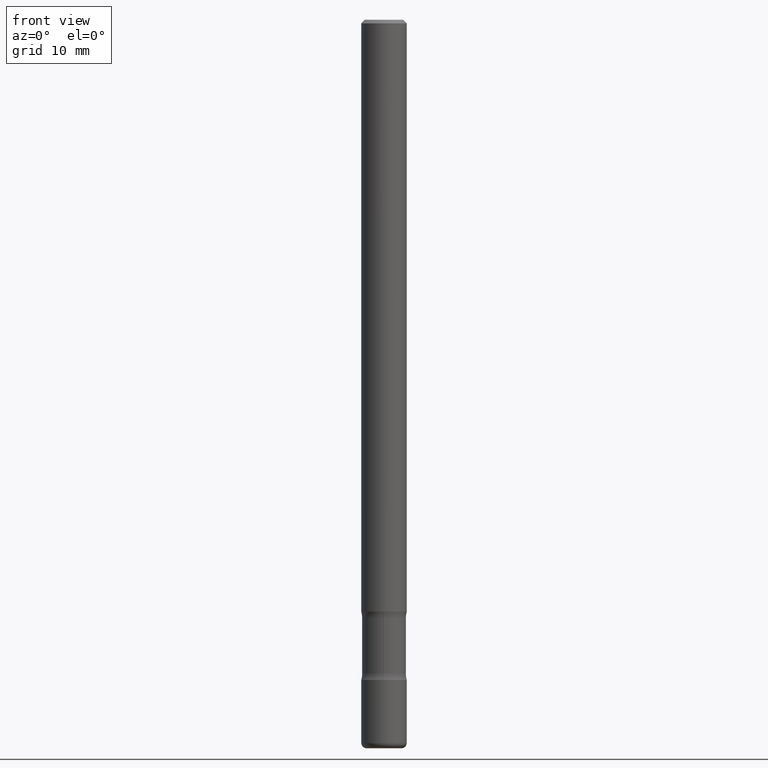
[diagram: clean part render]
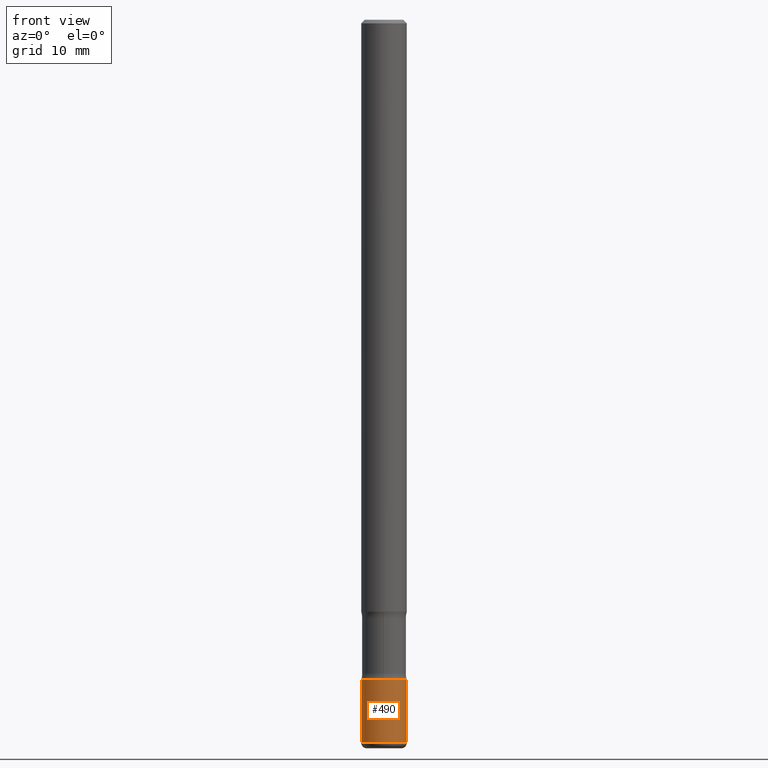
[diagram: same view with one face highlighted and labeled with its STEP entity id]
A machine part, front view. The second image highlights one B-rep face of the part: STEP entity #490.
In plain terms, the highlighted cylindrical surface (edge-blend (fillet) strip) has radius 3.175 mm, axis along (-0, 0, 1).
Its self-contained STEP definition (entity closure, byte-faithful):
#15 = CIRCLE ( 'NONE', #209, 0.1250000000000000000 ) ;
#18 = DIRECTION ( 'NONE',  ( 1.000000000000000000, -6.982962677686261189E-15, 0.000000000000000000 ) ) ;
#23 = FACE_OUTER_BOUND ( 'NONE', #521, .T. ) ;
#44 = CARTESIAN_POINT ( 'NONE',  ( 0.1250000000000000000, -8.728703347107833388E-16, 6.095220969744919741E-30 ) ) ;
#45 = ORIENTED_EDGE ( 'NONE', *, *, #524, .T. ) ;
#51 = ORIENTED_EDGE ( 'NONE', *, *, #340, .F. ) ;
#70 = VERTEX_POINT ( 'NONE', #597 ) ;
#128 = ORIENTED_EDGE ( 'NONE', *, *, #623, .T. ) ;
#162 = DIRECTION ( 'NONE',  ( -2.445468806185136597E-29, 3.491481338843145583E-15, 1.000000000000000000 ) ) ;
#184 = ORIENTED_EDGE ( 'NONE', *, *, #332, .F. ) ;
#188 = CARTESIAN_POINT ( 'NONE',  ( -0.1250000000000000000, -1.297300249550716373E-14, -3.970000000000000195 ) ) ;
#194 = CARTESIAN_POINT ( 'NONE',  ( 8.864824422421120163E-29, -1.265661985330640259E-14, -3.624999999999999556 ) ) ;
#208 = VERTEX_POINT ( 'NONE', #741 ) ;
#209 = AXIS2_PLACEMENT_3D ( 'NONE', #194, #674, #372 ) ;
#232 = AXIS2_PLACEMENT_3D ( 'NONE', #348, #720, #541 ) ;
#252 = LINE ( 'NONE', #627, #799 ) ;
#332 = EDGE_CURVE ( 'NONE', #556, #208, #252, .T. ) ;
#340 = EDGE_CURVE ( 'NONE', #208, #365, #15, .T. ) ;
#348 = CARTESIAN_POINT ( 'NONE',  ( 0.000000000000000000, 0.000000000000000000, 0.000000000000000000 ) ) ;
#365 = VERTEX_POINT ( 'NONE', #481 ) ;
#372 = DIRECTION ( 'NONE',  ( 1.000000000000000000, -6.982962677686262766E-15, 0.000000000000000000 ) ) ;
#396 = AXIS2_PLACEMENT_3D ( 'NONE', #595, #162, #18 ) ;
#424 = DIRECTION ( 'NONE',  ( -2.445468806185136877E-29, 3.491481338843145188E-15, 1.000000000000000000 ) ) ;
#481 = CARTESIAN_POINT ( 'NONE',  ( 0.1250000000000000000, -1.352949018801718435E-14, -3.624999999999999556 ) ) ;
#490 = ADVANCED_FACE ( 'NONE', ( #23 ), #716, .T. ) ;
#521 = EDGE_LOOP ( 'NONE', ( #184, #45, #128, #51 ) ) ;
#524 = EDGE_CURVE ( 'NONE', #556, #70, #755, .T. ) ;
#541 = DIRECTION ( 'NONE',  ( 1.000000000000000000, -6.982962677686266711E-15, 4.876176775795935793E-29 ) ) ;
#556 = VERTEX_POINT ( 'NONE', #188 ) ;
#595 = CARTESIAN_POINT ( 'NONE',  ( 9.708511160554992872E-29, -1.386118091520728738E-14, -3.970000000000000195 ) ) ;
#597 = CARTESIAN_POINT ( 'NONE',  ( 0.1250000000000000000, -1.473405124991807072E-14, -3.970000000000000195 ) ) ;
#623 = EDGE_CURVE ( 'NONE', #70, #365, #665, .T. ) ;
#627 = CARTESIAN_POINT ( 'NONE',  ( -0.1250000000000000000, 8.881784197001252323E-16, -6.148668862818632227E-30 ) ) ;
#665 = LINE ( 'NONE', #44, #675 ) ;
#674 = DIRECTION ( 'NONE',  ( -2.445468806185136597E-29, 3.491481338843145583E-15, 1.000000000000000000 ) ) ;
#675 = VECTOR ( 'NONE', #424, 39.37007874015748143 ) ;
#716 = CYLINDRICAL_SURFACE ( 'NONE', #232, 0.1250000000000000000 ) ;
#720 = DIRECTION ( 'NONE',  ( -2.445468806185136597E-29, 3.491481338843145583E-15, 1.000000000000000000 ) ) ;
#741 = CARTESIAN_POINT ( 'NONE',  ( -0.1250000000000000000, -1.237072196455672054E-14, -3.624999999999999556 ) ) ;
#755 = CIRCLE ( 'NONE', #396, 0.1250000000000000278 ) ;
#789 = DIRECTION ( 'NONE',  ( -2.445468806185136877E-29, 3.491481338843145188E-15, 1.000000000000000000 ) ) ;
#799 = VECTOR ( 'NONE', #789, 39.37007874015748143 ) ;